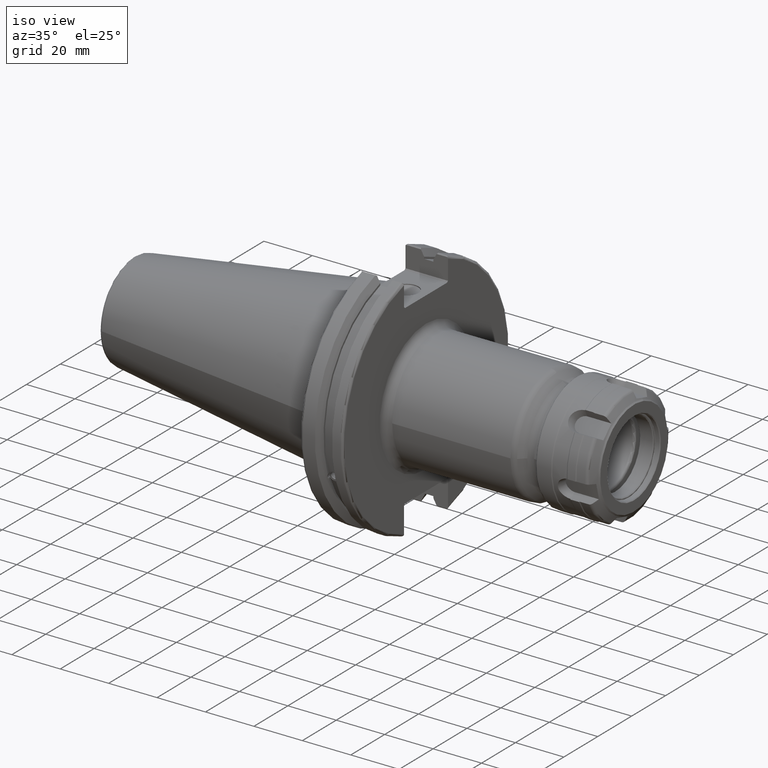
[diagram: clean part render]
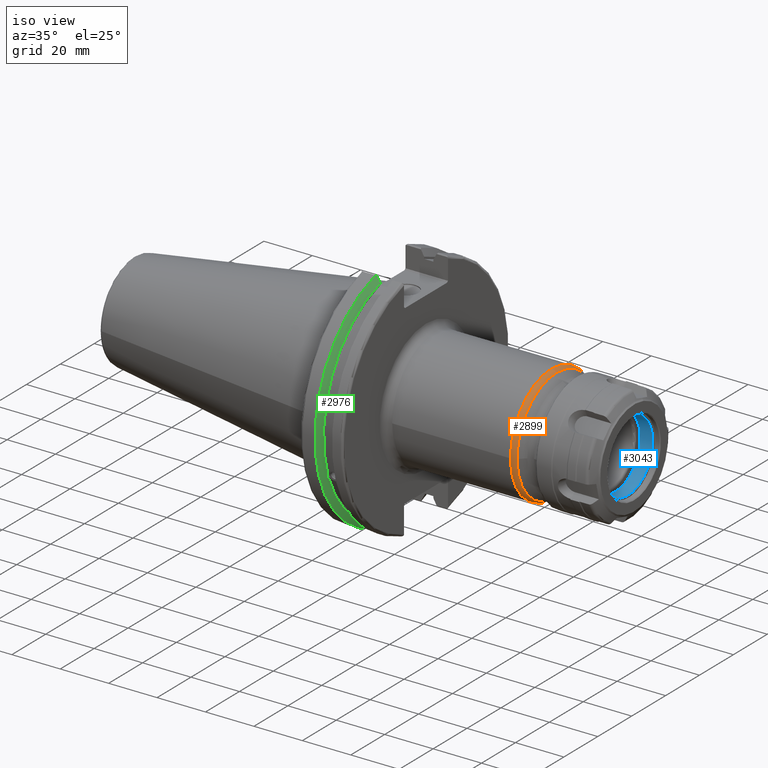
[diagram: same view with three faces highlighted in distinct colors, each labeled with its STEP entity id]
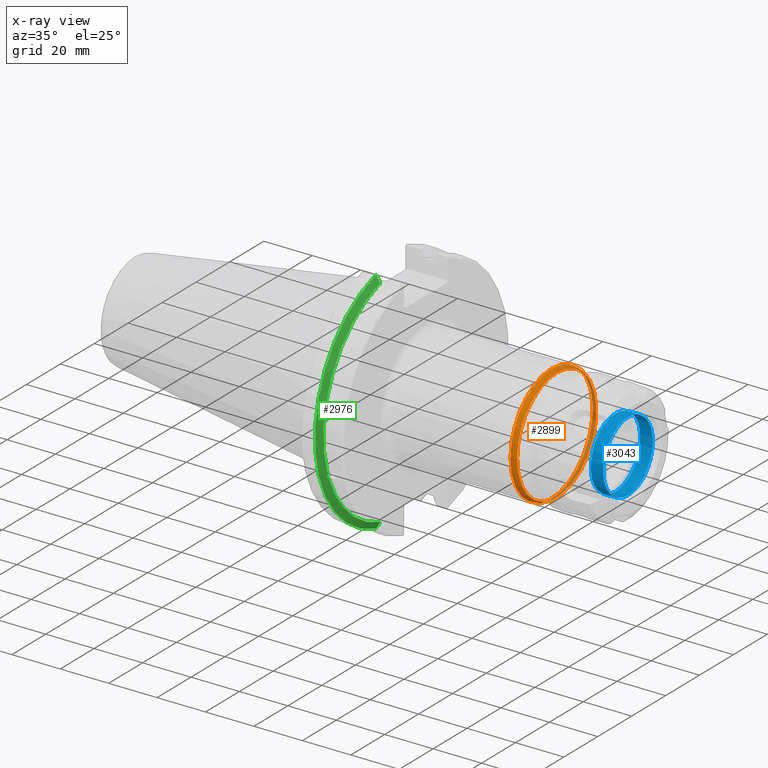
[diagram: x-ray of the same camera — body ghosted, the three highlighted faces saturated]
A machine part, iso view with three faces highlighted in distinct colors.
The next image is the same camera in x-ray (body ghosted, the three faces saturated) — at least one of them is partly hidden behind the body in this view.
Their STEP definitions:

[orange] entity #2899 — the highlighted toroidal blend (fillet) surface has major radius 21.25 mm and minor (blend) radius 3 mm.
#670=FACE_OUTER_BOUND('',#841,.T.);
#841=EDGE_LOOP('',(#1993,#1994,#1995,#1996,#1997,#1998));
#1041=CIRCLE('',#3149,23.3713203435596);
#1042=CIRCLE('',#3150,23.3713203435596);
#1044=CIRCLE('',#3154,3.);
#1045=CIRCLE('',#3155,24.25);
#1046=CIRCLE('',#3156,24.25);
#1204=VERTEX_POINT('',#4362);
#1205=VERTEX_POINT('',#4364);
#1207=VERTEX_POINT('',#4372);
#1208=VERTEX_POINT('',#4374);
#1514=EDGE_CURVE('',#1205,#1204,#1041,.T.);
#1515=EDGE_CURVE('',#1204,#1205,#1042,.T.);
#1518=EDGE_CURVE('',#1205,#1207,#1044,.T.);
#1519=EDGE_CURVE('',#1207,#1208,#1045,.T.);
#1520=EDGE_CURVE('',#1208,#1207,#1046,.T.);
#1993=ORIENTED_EDGE('',*,*,#1514,.T.);
#1994=ORIENTED_EDGE('',*,*,#1515,.T.);
#1995=ORIENTED_EDGE('',*,*,#1518,.T.);
#1996=ORIENTED_EDGE('',*,*,#1519,.T.);
#1997=ORIENTED_EDGE('',*,*,#1520,.T.);
#1998=ORIENTED_EDGE('',*,*,#1518,.F.);
#2873=TOROIDAL_SURFACE('',#3153,21.25,3.);
#2899=ADVANCED_FACE('',(#670),#2873,.T.);
#3149=AXIS2_PLACEMENT_3D('',#4365,#3519,#3520);
#3150=AXIS2_PLACEMENT_3D('',#4366,#3521,#3522);
#3153=AXIS2_PLACEMENT_3D('',#4371,#3528,#3529);
#3154=AXIS2_PLACEMENT_3D('',#4373,#3530,#3531);
#3155=AXIS2_PLACEMENT_3D('',#4375,#3532,#3533);
#3156=AXIS2_PLACEMENT_3D('',#4376,#3534,#3535);
#3519=DIRECTION('center_axis',(-1.,0.,0.));
#3520=DIRECTION('ref_axis',(0.,-1.,3.06161699786838E-17));
#3521=DIRECTION('center_axis',(-1.,0.,0.));
#3522=DIRECTION('ref_axis',(0.,-1.,3.06161699786838E-17));
#3528=DIRECTION('center_axis',(1.,0.,0.));
#3529=DIRECTION('ref_axis',(0.,0.,-1.));
#3530=DIRECTION('center_axis',(0.,-1.,-1.22464679914735E-16));
#3531=DIRECTION('ref_axis',(0.,-1.22464679914735E-16,1.));
#3532=DIRECTION('center_axis',(1.,0.,0.));
#3533=DIRECTION('ref_axis',(0.,-1.,1.83697019872103E-16));
#3534=DIRECTION('center_axis',(1.,0.,0.));
#3535=DIRECTION('ref_axis',(0.,-1.,1.83697019872103E-16));
#4362=CARTESIAN_POINT('',(73.0286796564404,-23.3713203435596,-2.86216126505877E-15));
#4364=CARTESIAN_POINT('',(73.0286796564404,-2.86216126505877E-15,23.3713203435596));
#4365=CARTESIAN_POINT('Origin',(73.0286796564404,0.,-3.57770158132347E-15));
#4366=CARTESIAN_POINT('Origin',(73.0286796564404,0.,-3.57770158132347E-15));
#4371=CARTESIAN_POINT('Origin',(70.9073593128807,0.,0.));
#4372=CARTESIAN_POINT('',(70.9073593128807,-2.96976848793233E-15,24.25));
#4373=CARTESIAN_POINT('Origin',(70.9073593128807,-2.60237444818813E-15,
21.25));
#4374=CARTESIAN_POINT('',(70.9073593128807,-24.25,-2.96976848793233E-15));
#4375=CARTESIAN_POINT('Origin',(70.9073593128807,0.,0.));
#4376=CARTESIAN_POINT('Origin',(70.9073593128807,0.,0.));

[blue] entity #3043 — the highlighted cylindrical surface (bore or boss wall) has radius 14.6 mm, axis along (1, -0, -0).
#190=CYLINDRICAL_SURFACE('',#3431,14.6);
#356=LINE('',#5972,#526);
#526=VECTOR('',#4247,14.6);
#814=FACE_OUTER_BOUND('',#1003,.T.);
#1003=EDGE_LOOP('',(#2788,#2789,#2790,#2791,#2792,#2793));
#1173=CIRCLE('',#3429,14.6);
#1174=CIRCLE('',#3430,14.6);
#1175=CIRCLE('',#3432,14.6);
#1176=CIRCLE('',#3433,14.6);
#1481=VERTEX_POINT('',#5962);
#1482=VERTEX_POINT('',#5964);
#1483=VERTEX_POINT('',#5968);
#1484=VERTEX_POINT('',#5969);
#1926=EDGE_CURVE('',#1481,#1482,#1173,.T.);
#1927=EDGE_CURVE('',#1482,#1481,#1174,.T.);
#1928=EDGE_CURVE('',#1483,#1484,#1175,.T.);
#1929=EDGE_CURVE('',#1484,#1483,#1176,.T.);
#1930=EDGE_CURVE('',#1484,#1482,#356,.T.);
#2788=ORIENTED_EDGE('',*,*,#1928,.F.);
#2789=ORIENTED_EDGE('',*,*,#1929,.F.);
#2790=ORIENTED_EDGE('',*,*,#1930,.T.);
#2791=ORIENTED_EDGE('',*,*,#1926,.F.);
#2792=ORIENTED_EDGE('',*,*,#1927,.F.);
#2793=ORIENTED_EDGE('',*,*,#1930,.F.);
#3043=ADVANCED_FACE('',(#814),#190,.F.);
#3429=AXIS2_PLACEMENT_3D('',#5965,#4237,#4238);
#3430=AXIS2_PLACEMENT_3D('',#5966,#4239,#4240);
#3431=AXIS2_PLACEMENT_3D('',#5967,#4241,#4242);
#3432=AXIS2_PLACEMENT_3D('',#5970,#4243,#4244);
#3433=AXIS2_PLACEMENT_3D('',#5971,#4245,#4246);
#4237=DIRECTION('center_axis',(1.,0.,0.));
#4238=DIRECTION('ref_axis',(0.,-1.,0.));
#4239=DIRECTION('center_axis',(1.,0.,0.));
#4240=DIRECTION('ref_axis',(0.,-1.,0.));
#4241=DIRECTION('center_axis',(1.,0.,0.));
#4242=DIRECTION('ref_axis',(0.,1.,0.));
#4243=DIRECTION('center_axis',(-1.,0.,0.));
#4244=DIRECTION('ref_axis',(0.,-1.,0.));
#4245=DIRECTION('center_axis',(-1.,0.,0.));
#4246=DIRECTION('ref_axis',(0.,-1.,0.));
#4247=DIRECTION('',(-1.,0.,0.));
#5962=CARTESIAN_POINT('',(16.3,14.6,1.78798432675514E-15));
#5964=CARTESIAN_POINT('',(16.3,-14.6,-1.78798432675514E-15));
#5965=CARTESIAN_POINT('Origin',(16.3,0.,0.));
#5966=CARTESIAN_POINT('Origin',(16.3,0.,0.));
#5967=CARTESIAN_POINT('Origin',(18.9,0.,0.));
#5968=CARTESIAN_POINT('',(21.5,14.6,-1.78798432675514E-15));
#5969=CARTESIAN_POINT('',(21.5,-14.6,-1.78798432675514E-15));
#5970=CARTESIAN_POINT('Origin',(21.5,0.,0.));
#5971=CARTESIAN_POINT('Origin',(21.5,0.,0.));
#5972=CARTESIAN_POINT('',(18.9,-14.6,-1.78798432675514E-15));

[green] entity #2976 — the highlighted conical surface has half-angle 60 deg.
#37=(
BOUNDED_CURVE()
B_SPLINE_CURVE(2,(#5082,#5083,#5084),.UNSPECIFIED.,.F.,.F.)
B_SPLINE_CURVE_WITH_KNOTS((3,3),(0.,0.275823910672366),.UNSPECIFIED.)
CURVE()
GEOMETRIC_REPRESENTATION_ITEM()
RATIONAL_B_SPLINE_CURVE((1.,1.00038235575046,1.00012873636977))
REPRESENTATION_ITEM('')
);
#38=(
BOUNDED_CURVE()
B_SPLINE_CURVE(2,(#5094,#5095,#5096),.UNSPECIFIED.,.F.,.F.)
B_SPLINE_CURVE_WITH_KNOTS((3,3),(0.0558332664541804,0.331657177124506),
 .UNSPECIFIED.)
CURVE()
GEOMETRIC_REPRESENTATION_ITEM()
RATIONAL_B_SPLINE_CURVE((1.00012873636289,1.00038235573002,1.))
REPRESENTATION_ITEM('')
);
#39=(
BOUNDED_CURVE()
B_SPLINE_CURVE(2,(#5133,#5134,#5135),.UNSPECIFIED.,.F.,.F.)
B_SPLINE_CURVE_WITH_KNOTS((3,3),(0.,0.0648240472896781),.UNSPECIFIED.)
CURVE()
GEOMETRIC_REPRESENTATION_ITEM()
RATIONAL_B_SPLINE_CURVE((1.,1.00011477674883,1.00019140646027))
REPRESENTATION_ITEM('')
);
#40=(
BOUNDED_CURVE()
B_SPLINE_CURVE(2,(#5141,#5142,#5143),.UNSPECIFIED.,.F.,.F.)
B_SPLINE_CURVE_WITH_KNOTS((3,3),(0.32526094493246,0.390084992222203),
 .UNSPECIFIED.)
CURVE()
GEOMETRIC_REPRESENTATION_ITEM()
RATIONAL_B_SPLINE_CURVE((1.0001914064594,1.00011477674832,1.))
REPRESENTATION_ITEM('')
);
#89=B_SPLINE_CURVE_WITH_KNOTS('',3,(#4643,#4644,#4645,#4646,#4647,#4648,
#4649,#4650,#4651,#4652,#4653,#4654,#4655,#4656),.UNSPECIFIED.,.F.,.F.,
(4,2,2,2,2,2,4),(0.426712868358728,0.441644498666906,0.48031331322313,0.518982127779354,
0.557650942335577,0.596319756891801,0.611251387199982),.UNSPECIFIED.);
#550=CONICAL_SURFACE('',#3299,47.8172386482472,1.0471975511966);
#747=FACE_OUTER_BOUND('',#933,.T.);
#933=EDGE_LOOP('',(#2418,#2419,#2420,#2421,#2422,#2423,#2424,#2425));
#1069=CIRCLE('',#3200,46.4219772964944);
#1088=CIRCLE('',#3243,49.2125);
#1111=CIRCLE('',#3300,46.4219772964944);
#1244=VERTEX_POINT('',#4640);
#1245=VERTEX_POINT('',#4642);
#1262=VERTEX_POINT('',#4734);
#1311=VERTEX_POINT('',#5079);
#1312=VERTEX_POINT('',#5081);
#1315=VERTEX_POINT('',#5093);
#1321=VERTEX_POINT('',#5131);
#1322=VERTEX_POINT('',#5137);
#1565=EDGE_CURVE('',#1245,#1244,#89,.T.);
#1589=EDGE_CURVE('',#1245,#1262,#1069,.T.);
#1657=EDGE_CURVE('',#1312,#1311,#37,.T.);
#1663=EDGE_CURVE('',#1315,#1262,#38,.T.);
#1673=EDGE_CURVE('',#1321,#1311,#39,.T.);
#1675=EDGE_CURVE('',#1321,#1322,#1088,.T.);
#1676=EDGE_CURVE('',#1315,#1322,#40,.T.);
#1736=EDGE_CURVE('',#1312,#1244,#1111,.T.);
#2418=ORIENTED_EDGE('',*,*,#1565,.T.);
#2419=ORIENTED_EDGE('',*,*,#1736,.F.);
#2420=ORIENTED_EDGE('',*,*,#1657,.T.);
#2421=ORIENTED_EDGE('',*,*,#1673,.F.);
#2422=ORIENTED_EDGE('',*,*,#1675,.T.);
#2423=ORIENTED_EDGE('',*,*,#1676,.F.);
#2424=ORIENTED_EDGE('',*,*,#1663,.T.);
#2425=ORIENTED_EDGE('',*,*,#1589,.F.);
#2976=ADVANCED_FACE('',(#747),#550,.T.);
#3200=AXIS2_PLACEMENT_3D('',#4735,#3649,#3650);
#3243=AXIS2_PLACEMENT_3D('',#5139,#3769,#3770);
#3299=AXIS2_PLACEMENT_3D('',#5293,#3911,#3912);
#3300=AXIS2_PLACEMENT_3D('',#5294,#3913,#3914);
#3649=DIRECTION('center_axis',(1.,0.,0.));
#3650=DIRECTION('ref_axis',(0.,0.,-1.));
#3769=DIRECTION('center_axis',(1.,0.,0.));
#3770=DIRECTION('ref_axis',(0.,0.,-1.));
#3911=DIRECTION('center_axis',(-1.,0.,0.));
#3912=DIRECTION('ref_axis',(0.,-1.,-1.22464679914735E-16));
#3913=DIRECTION('center_axis',(1.,0.,0.));
#3914=DIRECTION('ref_axis',(0.,0.,-1.));
#4640=CARTESIAN_POINT('',(9.2191,-43.9096390749305,-15.0646464421033));
#4642=CARTESIAN_POINT('',(9.21910000000001,-43.3201030900029,-16.6843832486479));
#4643=CARTESIAN_POINT('Ctrl Pts',(9.21909999999997,-43.3201030900029,-16.6843832486479));
#4644=CARTESIAN_POINT('Ctrl Pts',(9.2021184390339,-43.3613106941341,-16.6592273018006));
#4645=CARTESIAN_POINT('Ctrl Pts',(9.18608675403322,-43.4012416983557,-16.6326763251437));
#4646=CARTESIAN_POINT('Ctrl Pts',(9.13238673845037,-43.5391037343221,-16.5325130832406));
#4647=CARTESIAN_POINT('Ctrl Pts',(9.09621610663555,-43.6406982153491,-16.441180795372));
#4648=CARTESIAN_POINT('Ctrl Pts',(9.04690868251975,-43.8110833825827,-16.2291323464527));
#4649=CARTESIAN_POINT('Ctrl Pts',(9.0341,-43.8794096049168,-16.10796730316));
#4650=CARTESIAN_POINT('Ctrl Pts',(9.03409999999999,-43.9675796948952,-15.8657219718732));
#4651=CARTESIAN_POINT('Ctrl Pts',(9.04690868251975,-43.9931221605126,-15.7289849146254));
#4652=CARTESIAN_POINT('Ctrl Pts',(9.09621610663555,-43.9989016655819,-15.4570249042867));
#4653=CARTESIAN_POINT('Ctrl Pts',(9.13238673845037,-43.9797830409458,-15.3217566390708));
#4654=CARTESIAN_POINT('Ctrl Pts',(9.18608675403322,-43.9385582852181,-15.1564111356409));
#4655=CARTESIAN_POINT('Ctrl Pts',(9.2021184390339,-43.9250360001461,-15.1104047527575));
#4656=CARTESIAN_POINT('Ctrl Pts',(9.21909999999998,-43.9096390749305,-15.0646464421033));
#4734=CARTESIAN_POINT('',(9.2191,-12.95,-44.5791147973604));
#4735=CARTESIAN_POINT('Origin',(9.2191,0.,0.));
#5079=CARTESIAN_POINT('',(7.88638960562425,-12.95,46.9780755322918));
#5081=CARTESIAN_POINT('',(9.2191,-12.95,44.5791147973604));
#5082=CARTESIAN_POINT('Ctrl Pts',(9.2191,-12.95,44.5791147973604));
#5083=CARTESIAN_POINT('Ctrl Pts',(8.57020449052102,-12.95,45.7494966802823));
#5084=CARTESIAN_POINT('Ctrl Pts',(7.88638960562425,-12.95,46.9780755322918));
#5093=CARTESIAN_POINT('',(7.88638960562426,-12.95,-46.9780755322917));
#5094=CARTESIAN_POINT('Ctrl Pts',(7.88638960562426,-12.95,-46.9780755322917));
#5095=CARTESIAN_POINT('Ctrl Pts',(8.57020449050979,-12.95,-45.7494966803025));
#5096=CARTESIAN_POINT('Ctrl Pts',(9.2191,-12.95,-44.5791147973604));
#5131=CARTESIAN_POINT('',(7.60799096595127,-13.4317035994433,47.3440544806494));
#5133=CARTESIAN_POINT('Ctrl Pts',(7.60799096595127,-13.4317035994433,47.3440544806494));
#5134=CARTESIAN_POINT('Ctrl Pts',(7.7482689666383,-13.1896660169964,47.1601640966263));
#5135=CARTESIAN_POINT('Ctrl Pts',(7.88638960562425,-12.95,46.9780755322918));
#5137=CARTESIAN_POINT('',(7.60799096595127,-13.4317035994433,-47.3440544806494));
#5139=CARTESIAN_POINT('Origin',(7.60799096595127,0.,0.));
#5141=CARTESIAN_POINT('Ctrl Pts',(7.88638960562426,-12.95,-46.9780755322917));
#5142=CARTESIAN_POINT('Ctrl Pts',(7.74826896663821,-13.1896660169966,-47.1601640966264));
#5143=CARTESIAN_POINT('Ctrl Pts',(7.60799096595127,-13.4317035994433,-47.3440544806494));
#5293=CARTESIAN_POINT('Origin',(8.41354548297563,0.,0.));
#5294=CARTESIAN_POINT('Origin',(9.2191,0.,0.));